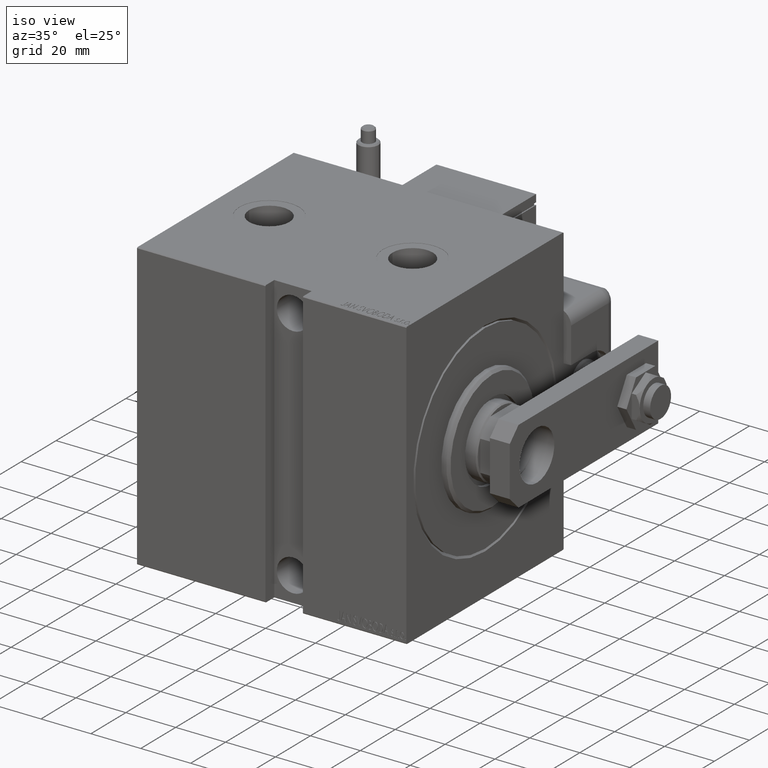
[diagram: clean part render]
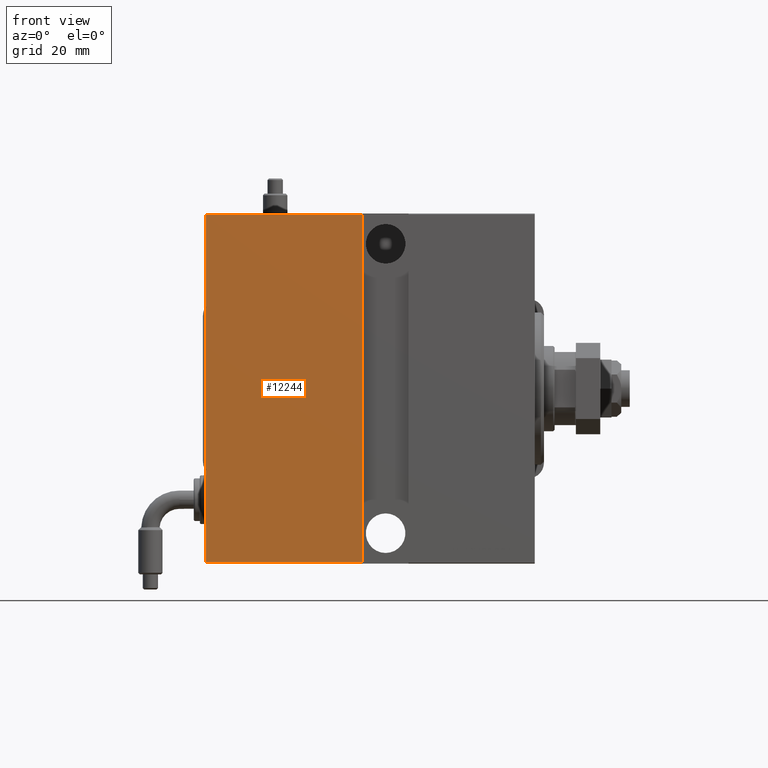
[diagram: tour spotlight — one face highlighted and labeled with its STEP entity id]
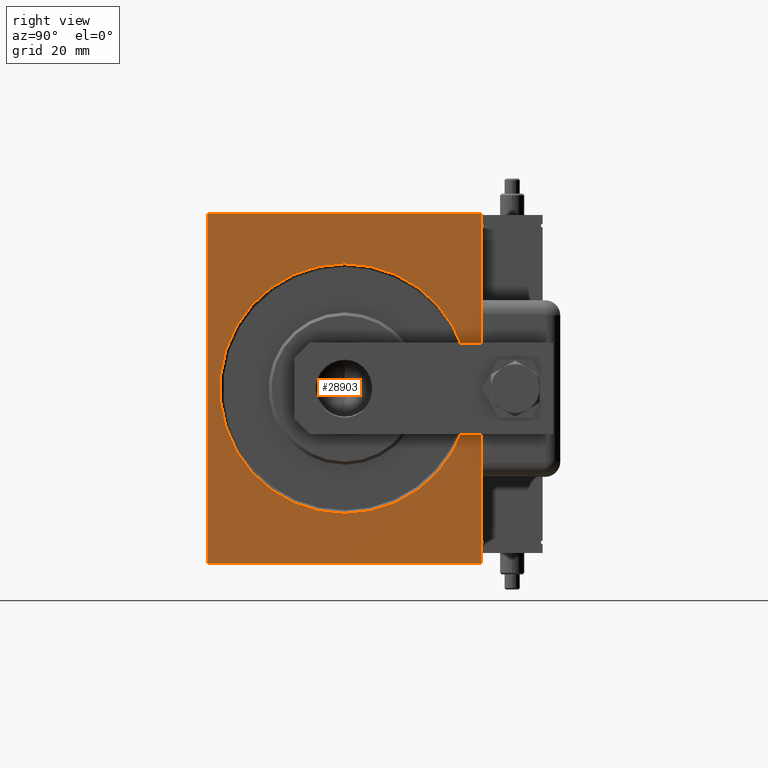
[diagram: tour spotlight — one face highlighted and labeled with its STEP entity id]
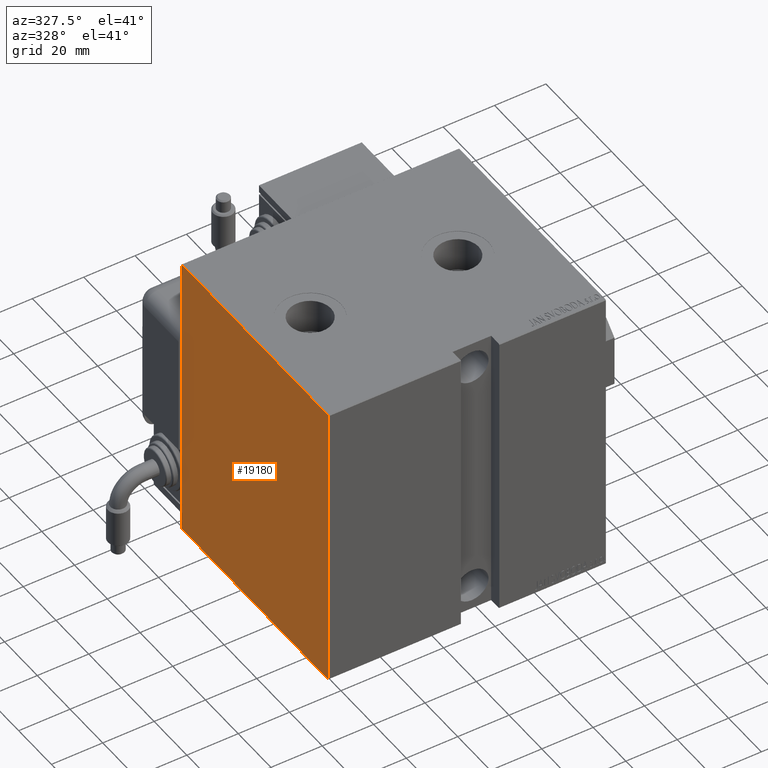
[diagram: tour spotlight — one face highlighted and labeled with its STEP entity id]
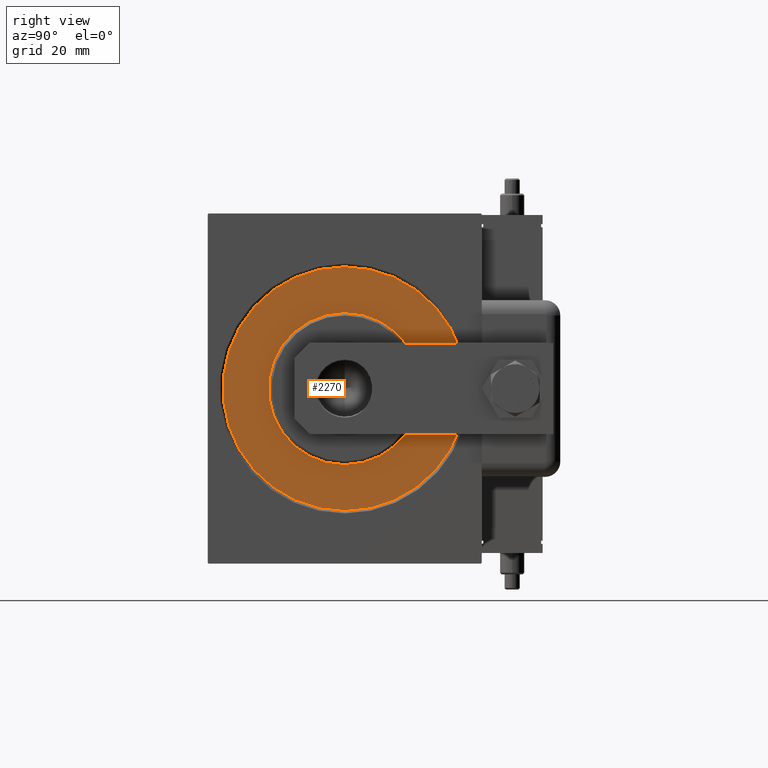
[diagram: tour spotlight — one face highlighted and labeled with its STEP entity id]
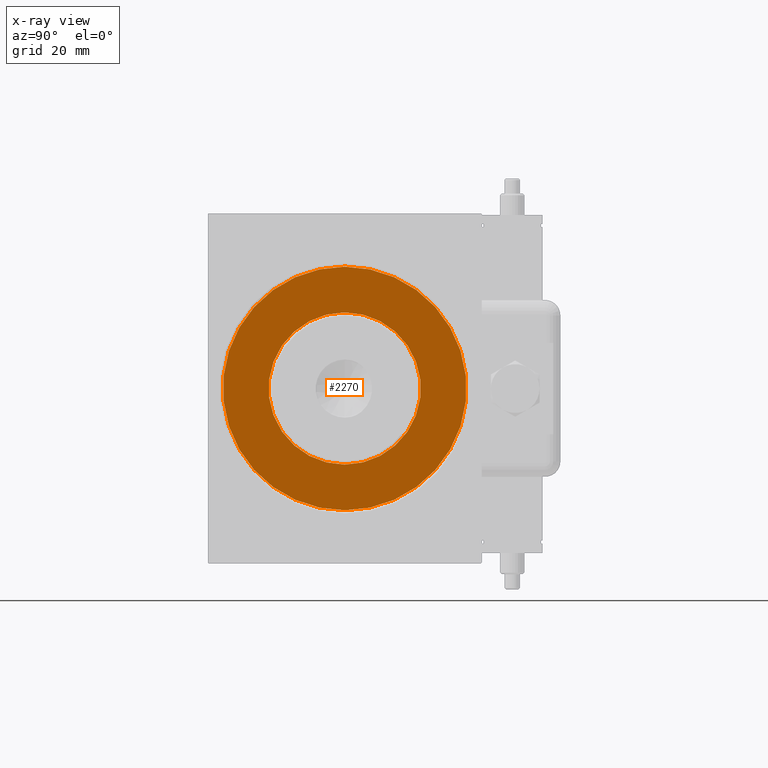
[diagram: x-ray of the same camera — body ghosted, this tour face saturated]
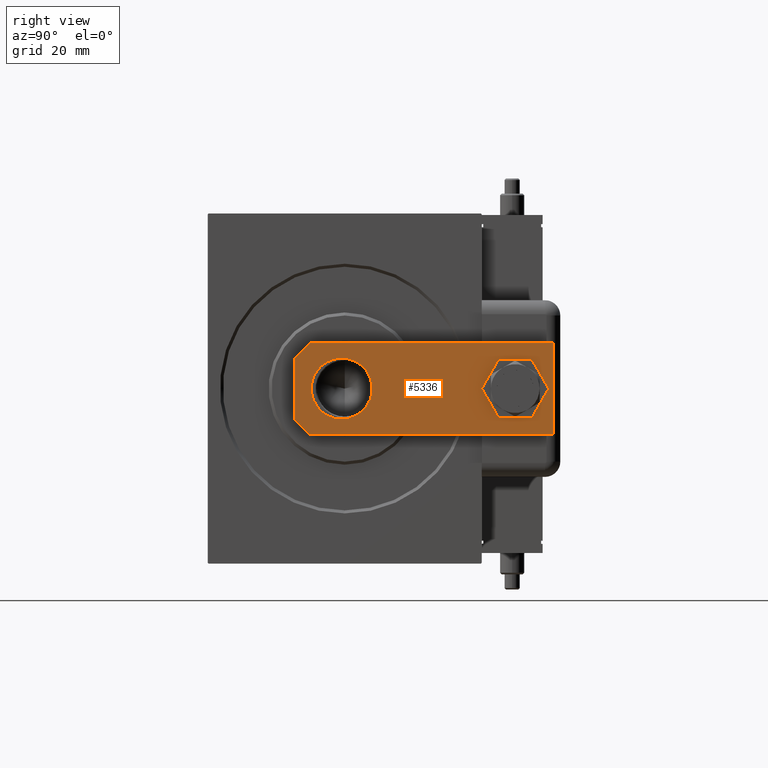
[diagram: tour spotlight — one face highlighted and labeled with its STEP entity id]
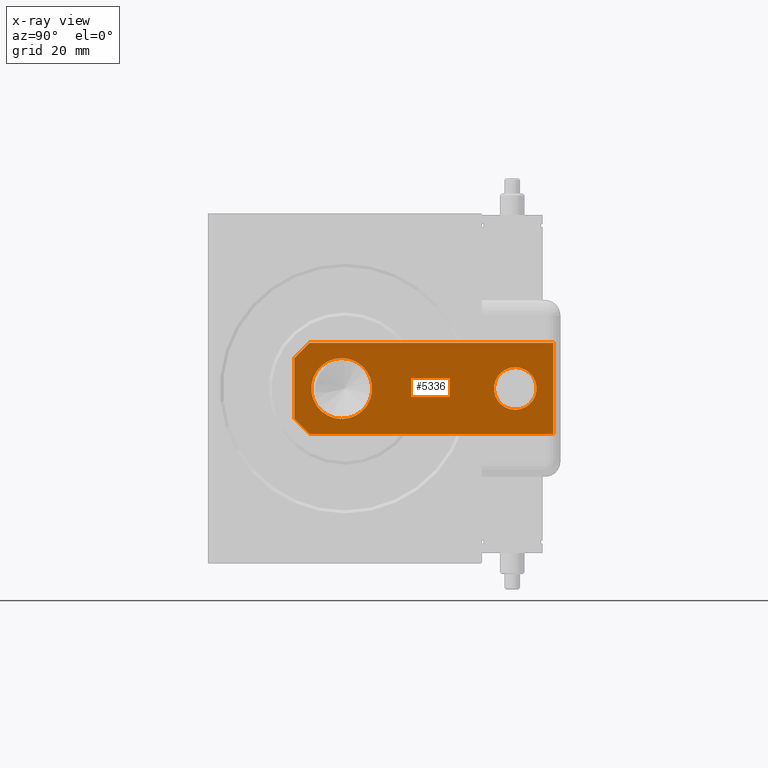
[diagram: x-ray of the same camera — body ghosted, this tour face saturated]
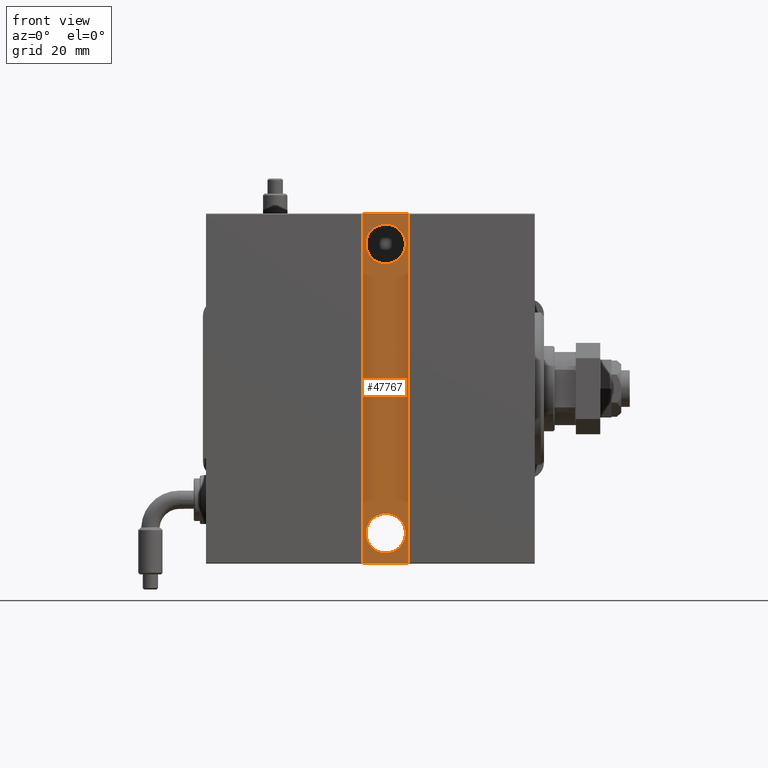
[diagram: tour spotlight — one face highlighted and labeled with its STEP entity id]
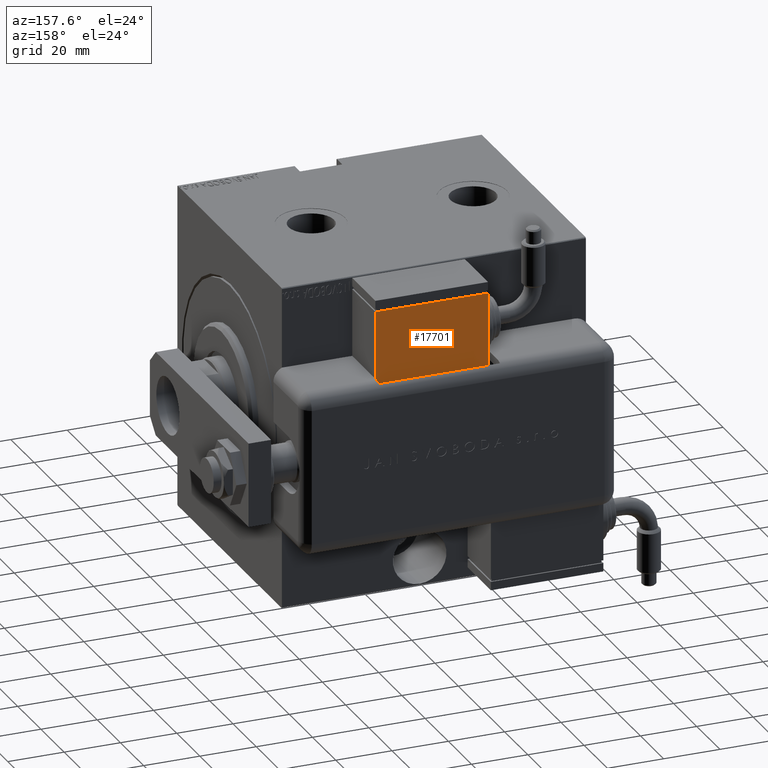
[diagram: tour spotlight — one face highlighted and labeled with its STEP entity id]
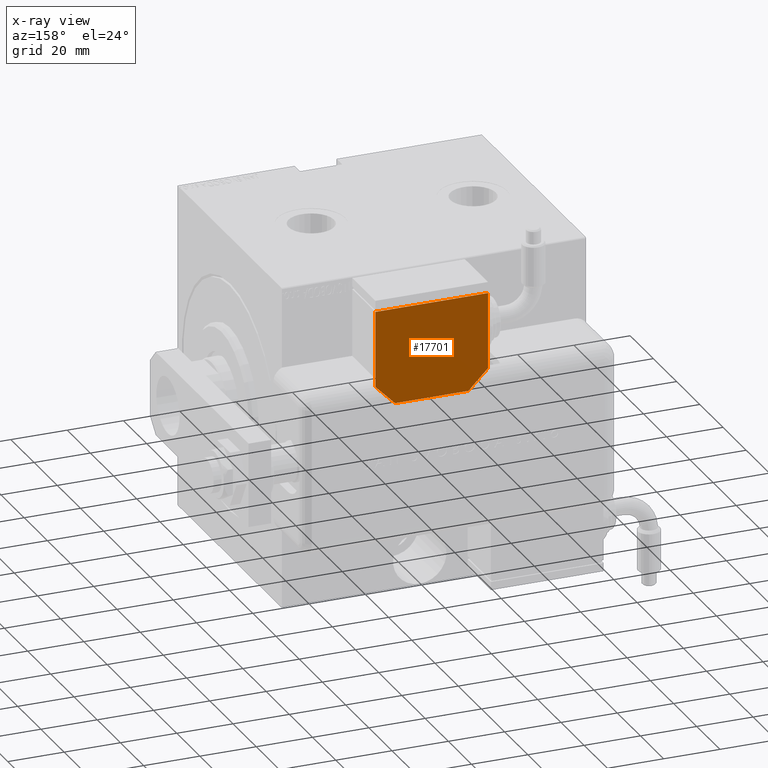
[diagram: x-ray of the same camera — body ghosted, this tour face saturated]
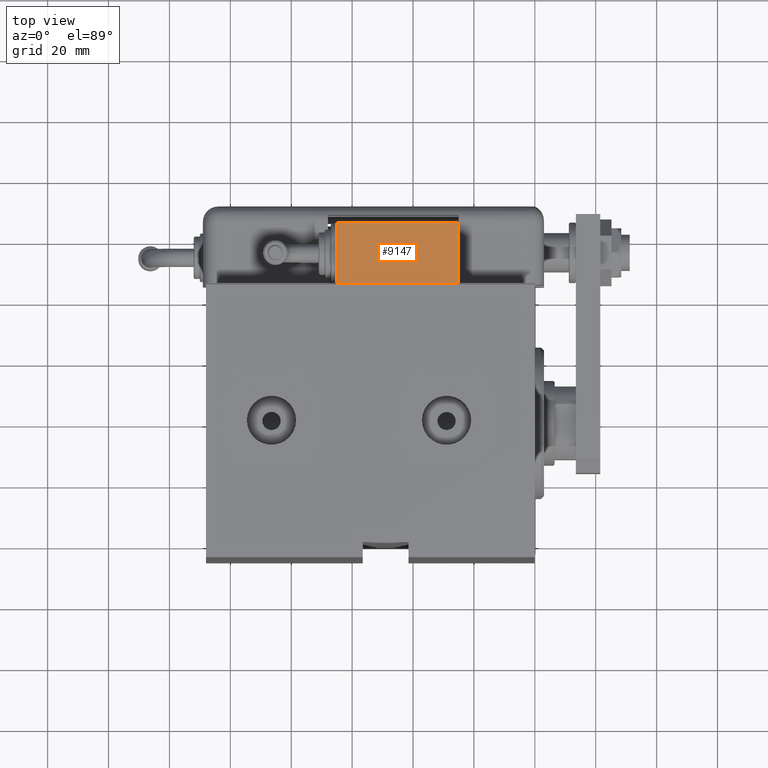
[diagram: tour spotlight — one face highlighted and labeled with its STEP entity id]
A machine part: a face-by-face anatomy tour. The part has 1258 B-rep faces; the first image is the clean iso view, then the 8 largest visible faces are spotlighted one at a time (largest first), each with its STEP entity span.

Face 1 — front view, entity #12244. In plain terms, the highlighted planar face has unit normal (0, 1, 0).
Definition (entity closure, byte-faithful):
#1123 = DIRECTION ( 'NONE',  ( -1.000000000000000000, 0.000000000000000000, 0.000000000000000000 ) ) ;
#2684 = LINE ( 'NONE', #57820, #11516 ) ;
#5771 = DIRECTION ( 'NONE',  ( -1.206764157201257291E-16, -0.000000000000000000, -1.000000000000000000 ) ) ;
#7352 = ORIENTED_EDGE ( 'NONE', *, *, #20819, .F. ) ;
#10140 = VECTOR ( 'NONE', #23026, 1000.000000000000000 ) ;
#11516 = VECTOR ( 'NONE', #16972, 1000.000000000000000 ) ;
#12244 = ADVANCED_FACE ( 'NONE', ( #28007 ), #36844, .F. ) ;
#12635 = EDGE_CURVE ( 'NONE', #31924, #35230, #58048, .T. ) ;
#13262 = ORIENTED_EDGE ( 'NONE', *, *, #15839, .T. ) ;
#14593 = CARTESIAN_POINT ( 'NONE',  ( 108.0000000000000000, 45.00000000000001421, -57.50000000000000711 ) ) ;
#15839 = EDGE_CURVE ( 'NONE', #50045, #47575, #47098, .T. ) ;
#16972 = DIRECTION ( 'NONE',  ( 0.000000000000000000, 0.000000000000000000, 1.000000000000000000 ) ) ;
#18588 = ORIENTED_EDGE ( 'NONE', *, *, #58117, .F. ) ;
#19756 = LINE ( 'NONE', #38359, #50044 ) ;
#20120 = CARTESIAN_POINT ( 'NONE',  ( 56.50000000000000000, 45.00000000000001421, -57.20000000000004547 ) ) ;
#20819 = EDGE_CURVE ( 'NONE', #50045, #35230, #19756, .T. ) ;
#22117 = CARTESIAN_POINT ( 'NONE',  ( 108.0000000000000000, 45.00000000000001421, 57.19999999999998863 ) ) ;
#23026 = DIRECTION ( 'NONE',  ( 1.000000000000000000, 0.000000000000000000, 0.000000000000000000 ) ) ;
#23426 = DIRECTION ( 'NONE',  ( 0.000000000000000000, -1.000000000000000000, 0.000000000000000000 ) ) ;
#28007 = FACE_OUTER_BOUND ( 'NONE', #39210, .T. ) ;
#30440 = AXIS2_PLACEMENT_3D ( 'NONE', #14593, #23426, #50856 ) ;
#31924 = VERTEX_POINT ( 'NONE', #40000 ) ;
#35230 = VERTEX_POINT ( 'NONE', #20120 ) ;
#36844 = PLANE ( 'NONE',  #30440 ) ;
#37336 = CARTESIAN_POINT ( 'NONE',  ( 108.0000000000000000, 45.00000000000001421, 57.20000000000001705 ) ) ;
#38284 = CARTESIAN_POINT ( 'NONE',  ( 108.0000000000000000, 45.00000000000001421, -57.20000000000004547 ) ) ;
#38359 = CARTESIAN_POINT ( 'NONE',  ( 56.50000000000000000, 45.00000000000001421, -57.50000000000000711 ) ) ;
#39210 = EDGE_LOOP ( 'NONE', ( #18588, #60088, #7352, #13262 ) ) ;
#40000 = CARTESIAN_POINT ( 'NONE',  ( 108.0000000000000000, 45.00000000000001421, -57.20000000000004547 ) ) ;
#45973 = VECTOR ( 'NONE', #1123, 1000.000000000000000 ) ;
#47098 = LINE ( 'NONE', #37336, #10140 ) ;
#47575 = VERTEX_POINT ( 'NONE', #22117 ) ;
#50044 = VECTOR ( 'NONE', #5771, 1000.000000000000000 ) ;
#50045 = VERTEX_POINT ( 'NONE', #51551 ) ;
#50856 = DIRECTION ( 'NONE',  ( 0.000000000000000000, -0.000000000000000000, -1.000000000000000000 ) ) ;
#51551 = CARTESIAN_POINT ( 'NONE',  ( 56.50000000000001421, 45.00000000000001421, 57.20000000000001705 ) ) ;
#57820 = CARTESIAN_POINT ( 'NONE',  ( 108.0000000000000000, 45.00000000000001421, -57.50000000000000711 ) ) ;
#58048 = LINE ( 'NONE', #38284, #45973 ) ;
#58117 = EDGE_CURVE ( 'NONE', #31924, #47575, #2684, .T. ) ;
#60088 = ORIENTED_EDGE ( 'NONE', *, *, #12635, .T. ) ;

Face 2 — right view, entity #28903. In plain terms, the highlighted planar face has unit normal (-1, 0, 0).
Definition (entity closure, byte-faithful):
#14 = ORIENTED_EDGE ( 'NONE', *, *, #37092, .F. ) ;
#928 = VERTEX_POINT ( 'NONE', #54497 ) ;
#1027 = CARTESIAN_POINT ( 'NONE',  ( 0.000000000000000000, 0.000000000000000000, 0.000000000000000000 ) ) ;
#1141 = DIRECTION ( 'NONE',  ( 0.000000000000000000, 0.000000000000000000, -1.000000000000000000 ) ) ;
#2490 = PLANE ( 'NONE',  #47502 ) ;
#2862 = CIRCLE ( 'NONE', #5786, 41.00000000000000711 ) ;
#3182 = CARTESIAN_POINT ( 'NONE',  ( 0.000000000000000000, -44.70000000000003126, -57.50000000000002132 ) ) ;
#3380 = VERTEX_POINT ( 'NONE', #57894 ) ;
#4393 = DIRECTION ( 'NONE',  ( 0.000000000000000000, 0.000000000000000000, -1.000000000000000000 ) ) ;
#4530 = CARTESIAN_POINT ( 'NONE',  ( 0.000000000000000000, -45.00000000000000000, -57.20000000000003126 ) ) ;
#4778 = VERTEX_POINT ( 'NONE', #55482 ) ;
#5351 = ORIENTED_EDGE ( 'NONE', *, *, #13051, .F. ) ;
#5786 = AXIS2_PLACEMENT_3D ( 'NONE', #29158, #34617, #1141 ) ;
#6401 = CARTESIAN_POINT ( 'NONE',  ( 0.000000000000000000, -45.00000000000000000, -57.50000000000002132 ) ) ;
#6416 = VECTOR ( 'NONE', #31259, 1000.000000000000114 ) ;
#6614 = ORIENTED_EDGE ( 'NONE', *, *, #10264, .T. ) ;
#7417 = VERTEX_POINT ( 'NONE', #27358 ) ;
#8289 = LINE ( 'NONE', #50038, #35312 ) ;
#9216 = LINE ( 'NONE', #23226, #56381 ) ;
#10264 = EDGE_CURVE ( 'NONE', #28567, #56037, #17766, .T. ) ;
#13051 = EDGE_CURVE ( 'NONE', #52469, #56037, #8289, .T. ) ;
#13267 = ORIENTED_EDGE ( 'NONE', *, *, #38831, .T. ) ;
#13630 = VECTOR ( 'NONE', #28131, 1000.000000000000000 ) ;
#14257 = EDGE_CURVE ( 'NONE', #28567, #4778, #57560, .T. ) ;
#15107 = ORIENTED_EDGE ( 'NONE', *, *, #26835, .T. ) ;
#15782 = VECTOR ( 'NONE', #60106, 1000.000000000000114 ) ;
#15997 = CIRCLE ( 'NONE', #50049, 41.00000000000000711 ) ;
#17022 = EDGE_CURVE ( 'NONE', #32740, #3380, #15997, .T. ) ;
#17766 = LINE ( 'NONE', #3182, #15782 ) ;
#21057 = CARTESIAN_POINT ( 'NONE',  ( 0.000000000000000000, 0.000000000000000000, 0.000000000000000000 ) ) ;
#21563 = EDGE_LOOP ( 'NONE', ( #22361, #53568 ) ) ;
#22173 = EDGE_CURVE ( 'NONE', #50612, #7417, #44658, .T. ) ;
#22361 = ORIENTED_EDGE ( 'NONE', *, *, #17022, .T. ) ;
#23226 = CARTESIAN_POINT ( 'NONE',  ( 0.000000000000000000, 45.00000000000001421, 57.50000000000001421 ) ) ;
#24357 = VERTEX_POINT ( 'NONE', #55932 ) ;
#25106 = CARTESIAN_POINT ( 'NONE',  ( 0.000000000000000000, -44.70000000000003126, -57.50000000000002132 ) ) ;
#25277 = DIRECTION ( 'NONE',  ( 0.000000000000000000, 1.000000000000000000, 1.541976423090495140E-16 ) ) ;
#25469 = CARTESIAN_POINT ( 'NONE',  ( 0.000000000000000000, 45.00000000000001421, -57.50000000000000711 ) ) ;
#26835 = EDGE_CURVE ( 'NONE', #52469, #24357, #34001, .T. ) ;
#27358 = CARTESIAN_POINT ( 'NONE',  ( 0.000000000000000000, 45.00000000000001421, 57.19999999999998863 ) ) ;
#28131 = DIRECTION ( 'NONE',  ( -0.000000000000000000, 0.7071067811865393571, -0.7071067811865556774 ) ) ;
#28567 = VERTEX_POINT ( 'NONE', #25106 ) ;
#28903 = ADVANCED_FACE ( 'NONE', ( #39354, #33879 ), #2490, .F. ) ;
#29112 = ORIENTED_EDGE ( 'NONE', *, *, #45477, .T. ) ;
#29158 = CARTESIAN_POINT ( 'NONE',  ( 0.000000000000000000, 0.000000000000000000, 0.000000000000000000 ) ) ;
#29426 = DIRECTION ( 'NONE',  ( -0.000000000000000000, 0.7071067811865474617, 0.7071067811865474617 ) ) ;
#30406 = CARTESIAN_POINT ( 'NONE',  ( 0.000000000000000000, 45.00000000000001421, -57.20000000000004547 ) ) ;
#31259 = DIRECTION ( 'NONE',  ( -0.000000000000000000, -0.7071067811865474617, -0.7071067811865474617 ) ) ;
#32687 = LINE ( 'NONE', #60094, #13630 ) ;
#32740 = VERTEX_POINT ( 'NONE', #54299 ) ;
#33879 = FACE_OUTER_BOUND ( 'NONE', #57312, .T. ) ;
#34001 = LINE ( 'NONE', #52579, #36689 ) ;
#34477 = DIRECTION ( 'NONE',  ( 1.000000000000000000, 0.000000000000000000, -0.000000000000000000 ) ) ;
#34617 = DIRECTION ( 'NONE',  ( 1.000000000000000000, 0.000000000000000000, -0.000000000000000000 ) ) ;
#35312 = VECTOR ( 'NONE', #40596, 1000.000000000000000 ) ;
#36507 = EDGE_CURVE ( 'NONE', #3380, #32740, #2862, .T. ) ;
#36689 = VECTOR ( 'NONE', #29426, 1000.000000000000114 ) ;
#37092 = EDGE_CURVE ( 'NONE', #928, #24357, #9216, .T. ) ;
#38831 = EDGE_CURVE ( 'NONE', #928, #7417, #32687, .T. ) ;
#39354 = FACE_BOUND ( 'NONE', #21563, .T. ) ;
#40410 = CARTESIAN_POINT ( 'NONE',  ( 0.000000000000000000, 45.00000000000001421, -57.20000000000004547 ) ) ;
#40596 = DIRECTION ( 'NONE',  ( 0.000000000000000000, 0.000000000000000000, -1.000000000000000000 ) ) ;
#44658 = LINE ( 'NONE', #25469, #47243 ) ;
#45477 = EDGE_CURVE ( 'NONE', #50612, #4778, #54412, .T. ) ;
#46074 = CARTESIAN_POINT ( 'NONE',  ( 0.000000000000000000, -45.00000000000000000, 57.20000000000000284 ) ) ;
#47243 = VECTOR ( 'NONE', #57464, 1000.000000000000000 ) ;
#47502 = AXIS2_PLACEMENT_3D ( 'NONE', #21057, #34477, #57622 ) ;
#48937 = ORIENTED_EDGE ( 'NONE', *, *, #22173, .F. ) ;
#50038 = CARTESIAN_POINT ( 'NONE',  ( 0.000000000000000000, -45.00000000000000000, 57.49999999999999289 ) ) ;
#50049 = AXIS2_PLACEMENT_3D ( 'NONE', #1027, #51290, #4393 ) ;
#50612 = VERTEX_POINT ( 'NONE', #30406 ) ;
#51290 = DIRECTION ( 'NONE',  ( 1.000000000000000000, 0.000000000000000000, -0.000000000000000000 ) ) ;
#51565 = DIRECTION ( 'NONE',  ( 0.000000000000000000, -1.000000000000000000, -2.312964634635742957E-16 ) ) ;
#51926 = VECTOR ( 'NONE', #25277, 1000.000000000000000 ) ;
#52469 = VERTEX_POINT ( 'NONE', #46074 ) ;
#52579 = CARTESIAN_POINT ( 'NONE',  ( 0.000000000000000000, -45.00000000000000000, 57.20000000000000284 ) ) ;
#52998 = ORIENTED_EDGE ( 'NONE', *, *, #14257, .F. ) ;
#53568 = ORIENTED_EDGE ( 'NONE', *, *, #36507, .T. ) ;
#54299 = CARTESIAN_POINT ( 'NONE',  ( 0.000000000000000000, 0.000000000000000000, 41.00000000000000711 ) ) ;
#54412 = LINE ( 'NONE', #40410, #6416 ) ;
#54497 = CARTESIAN_POINT ( 'NONE',  ( 0.000000000000000000, 44.70000000000001705, 57.50000000000001421 ) ) ;
#55482 = CARTESIAN_POINT ( 'NONE',  ( 0.000000000000000000, 44.70000000000001705, -57.50000000000000711 ) ) ;
#55932 = CARTESIAN_POINT ( 'NONE',  ( 0.000000000000000000, -44.69999999999997442, 57.49999999999999289 ) ) ;
#56037 = VERTEX_POINT ( 'NONE', #4530 ) ;
#56381 = VECTOR ( 'NONE', #51565, 1000.000000000000000 ) ;
#57312 = EDGE_LOOP ( 'NONE', ( #14, #13267, #48937, #29112, #52998, #6614, #5351, #15107 ) ) ;
#57464 = DIRECTION ( 'NONE',  ( 0.000000000000000000, 0.000000000000000000, 1.000000000000000000 ) ) ;
#57560 = LINE ( 'NONE', #6401, #51926 ) ;
#57622 = DIRECTION ( 'NONE',  ( -0.000000000000000000, 0.000000000000000000, -1.000000000000000000 ) ) ;
#57894 = CARTESIAN_POINT ( 'NONE',  ( 0.000000000000000000, 5.021051876504148963E-15, -41.00000000000000711 ) ) ;
#60094 = CARTESIAN_POINT ( 'NONE',  ( 0.000000000000000000, 44.70000000000001705, 57.50000000000001421 ) ) ;
#60106 = DIRECTION ( 'NONE',  ( 0.000000000000000000, -0.7071067811865474617, 0.7071067811865474617 ) ) ;

Face 3 — auxiliary view, entity #19180. In plain terms, the highlighted planar face has unit normal (-1, 0, 0).
Definition (entity closure, byte-faithful):
#990 = EDGE_CURVE ( 'NONE', #47575, #10085, #33458, .T. ) ;
#1042 = CARTESIAN_POINT ( 'NONE',  ( 108.0000000000000000, -51.10000000000002984, -51.10000000000002984 ) ) ;
#2101 = DIRECTION ( 'NONE',  ( 0.000000000000000000, -1.000000000000000000, -2.312964634635742957E-16 ) ) ;
#2229 = VECTOR ( 'NONE', #31287, 1000.000000000000114 ) ;
#2485 = AXIS2_PLACEMENT_3D ( 'NONE', #33692, #10839, #47729 ) ;
#2679 = CARTESIAN_POINT ( 'NONE',  ( 108.0000000000000000, -51.10000000000000853, 51.10000000000000853 ) ) ;
#2684 = LINE ( 'NONE', #57820, #11516 ) ;
#3708 = VECTOR ( 'NONE', #34580, 1000.000000000000114 ) ;
#7232 = VECTOR ( 'NONE', #15474, 1000.000000000000000 ) ;
#7346 = ORIENTED_EDGE ( 'NONE', *, *, #57313, .T. ) ;
#9251 = CARTESIAN_POINT ( 'NONE',  ( 108.0000000000000000, -44.70000000000003126, -57.50000000000002132 ) ) ;
#10085 = VERTEX_POINT ( 'NONE', #15695 ) ;
#10839 = DIRECTION ( 'NONE',  ( 1.000000000000000000, 0.000000000000000000, -0.000000000000000000 ) ) ;
#11516 = VECTOR ( 'NONE', #16972, 1000.000000000000000 ) ;
#12442 = EDGE_CURVE ( 'NONE', #29453, #14534, #41037, .T. ) ;
#14181 = ORIENTED_EDGE ( 'NONE', *, *, #35846, .T. ) ;
#14477 = CARTESIAN_POINT ( 'NONE',  ( 108.0000000000000000, -44.69999999999997442, 57.49999999999999289 ) ) ;
#14534 = VERTEX_POINT ( 'NONE', #52327 ) ;
#14700 = ORIENTED_EDGE ( 'NONE', *, *, #58117, .T. ) ;
#15220 = CARTESIAN_POINT ( 'NONE',  ( 108.0000000000000000, 44.70000000000001705, -57.50000000000000711 ) ) ;
#15474 = DIRECTION ( 'NONE',  ( -0.000000000000000000, -0.7071067811865393571, 0.7071067811865556774 ) ) ;
#15695 = CARTESIAN_POINT ( 'NONE',  ( 108.0000000000000000, 44.70000000000001705, 57.50000000000001421 ) ) ;
#16972 = DIRECTION ( 'NONE',  ( 0.000000000000000000, 0.000000000000000000, 1.000000000000000000 ) ) ;
#17296 = ORIENTED_EDGE ( 'NONE', *, *, #12442, .T. ) ;
#18964 = ORIENTED_EDGE ( 'NONE', *, *, #45058, .T. ) ;
#19180 = ADVANCED_FACE ( 'NONE', ( #29136 ), #42555, .T. ) ;
#19656 = ORIENTED_EDGE ( 'NONE', *, *, #58787, .T. ) ;
#19766 = LINE ( 'NONE', #29520, #57280 ) ;
#21830 = DIRECTION ( 'NONE',  ( 0.000000000000000000, 1.000000000000000000, 1.541976423090495140E-16 ) ) ;
#22117 = CARTESIAN_POINT ( 'NONE',  ( 108.0000000000000000, 45.00000000000001421, 57.19999999999998863 ) ) ;
#24325 = CARTESIAN_POINT ( 'NONE',  ( 108.0000000000000000, 51.10000000000053433, 51.09999999999935483 ) ) ;
#25734 = CARTESIAN_POINT ( 'NONE',  ( 108.0000000000000000, 51.10000000000002984, -51.10000000000002984 ) ) ;
#26500 = EDGE_CURVE ( 'NONE', #46685, #42683, #36455, .T. ) ;
#26909 = VECTOR ( 'NONE', #21830, 1000.000000000000000 ) ;
#29136 = FACE_OUTER_BOUND ( 'NONE', #51425, .T. ) ;
#29453 = VERTEX_POINT ( 'NONE', #14477 ) ;
#29520 = CARTESIAN_POINT ( 'NONE',  ( 108.0000000000000000, 45.00000000000001421, 57.50000000000001421 ) ) ;
#30599 = CARTESIAN_POINT ( 'NONE',  ( 108.0000000000000000, -45.00000000000000000, -57.20000000000003126 ) ) ;
#31287 = DIRECTION ( 'NONE',  ( -0.000000000000000000, -0.7071067811865474617, -0.7071067811865474617 ) ) ;
#31924 = VERTEX_POINT ( 'NONE', #40000 ) ;
#33458 = LINE ( 'NONE', #24325, #7232 ) ;
#33692 = CARTESIAN_POINT ( 'NONE',  ( 108.0000000000000000, 0.000000000000000000, 0.000000000000000000 ) ) ;
#33995 = VECTOR ( 'NONE', #52208, 1000.000000000000114 ) ;
#34580 = DIRECTION ( 'NONE',  ( -0.000000000000000000, 0.7071067811865474617, 0.7071067811865474617 ) ) ;
#34633 = VERTEX_POINT ( 'NONE', #30599 ) ;
#35846 = EDGE_CURVE ( 'NONE', #34633, #46685, #42791, .T. ) ;
#35891 = ORIENTED_EDGE ( 'NONE', *, *, #26500, .T. ) ;
#36455 = LINE ( 'NONE', #50178, #26909 ) ;
#36816 = LINE ( 'NONE', #50535, #45229 ) ;
#39208 = ORIENTED_EDGE ( 'NONE', *, *, #990, .T. ) ;
#40000 = CARTESIAN_POINT ( 'NONE',  ( 108.0000000000000000, 45.00000000000001421, -57.20000000000004547 ) ) ;
#41037 = LINE ( 'NONE', #2679, #2229 ) ;
#41693 = DIRECTION ( 'NONE',  ( 0.000000000000000000, 0.000000000000000000, -1.000000000000000000 ) ) ;
#42555 = PLANE ( 'NONE',  #2485 ) ;
#42683 = VERTEX_POINT ( 'NONE', #15220 ) ;
#42791 = LINE ( 'NONE', #1042, #33995 ) ;
#43139 = LINE ( 'NONE', #25734, #3708 ) ;
#45058 = EDGE_CURVE ( 'NONE', #14534, #34633, #36816, .T. ) ;
#45229 = VECTOR ( 'NONE', #41693, 1000.000000000000000 ) ;
#46685 = VERTEX_POINT ( 'NONE', #9251 ) ;
#47575 = VERTEX_POINT ( 'NONE', #22117 ) ;
#47729 = DIRECTION ( 'NONE',  ( -0.000000000000000000, 0.000000000000000000, -1.000000000000000000 ) ) ;
#50178 = CARTESIAN_POINT ( 'NONE',  ( 108.0000000000000000, -45.00000000000000000, -57.50000000000002132 ) ) ;
#50535 = CARTESIAN_POINT ( 'NONE',  ( 108.0000000000000000, -45.00000000000000000, 57.49999999999999289 ) ) ;
#51425 = EDGE_LOOP ( 'NONE', ( #35891, #7346, #14700, #39208, #19656, #17296, #18964, #14181 ) ) ;
#52208 = DIRECTION ( 'NONE',  ( -0.000000000000000000, 0.7071067811865474617, -0.7071067811865474617 ) ) ;
#52327 = CARTESIAN_POINT ( 'NONE',  ( 108.0000000000000000, -45.00000000000000000, 57.20000000000000284 ) ) ;
#57280 = VECTOR ( 'NONE', #2101, 1000.000000000000000 ) ;
#57313 = EDGE_CURVE ( 'NONE', #42683, #31924, #43139, .T. ) ;
#57820 = CARTESIAN_POINT ( 'NONE',  ( 108.0000000000000000, 45.00000000000001421, -57.50000000000000711 ) ) ;
#58117 = EDGE_CURVE ( 'NONE', #31924, #47575, #2684, .T. ) ;
#58787 = EDGE_CURVE ( 'NONE', #10085, #29453, #19766, .T. ) ;

Face 4 — right view, entity #2270. An x-ray twin of the same camera follows (body ghosted, this face saturated) — the face is partly hidden behind the body. In plain terms, the highlighted planar face has unit normal (1, 0, 0).
Definition (entity closure, byte-faithful):
#20 = CARTESIAN_POINT ( 'NONE',  ( 0.000000000000000000, 0.000000000000000000, -40.00000000000000000 ) ) ;
#2270 = ADVANCED_FACE ( 'NONE', ( #7760, #26358 ), #8662, .T. ) ;
#3852 = CARTESIAN_POINT ( 'NONE',  ( 0.000000000000000000, 0.000000000000000000, 0.000000000000000000 ) ) ;
#5348 = DIRECTION ( 'NONE',  ( 0.000000000000000000, 0.000000000000000000, -1.000000000000000000 ) ) ;
#5458 = EDGE_CURVE ( 'NONE', #51960, #28787, #11101, .T. ) ;
#5566 = DIRECTION ( 'NONE',  ( 1.000000000000000000, 0.000000000000000000, 0.000000000000000000 ) ) ;
#7760 = FACE_OUTER_BOUND ( 'NONE', #21407, .T. ) ;
#8662 = PLANE ( 'NONE',  #42301 ) ;
#10615 = CIRCLE ( 'NONE', #12552, 25.00000000000000000 ) ;
#11101 = CIRCLE ( 'NONE', #45155, 25.00000000000000000 ) ;
#11738 = CARTESIAN_POINT ( 'NONE',  ( 0.000000000000000000, 0.000000000000000000, 0.000000000000000000 ) ) ;
#12552 = AXIS2_PLACEMENT_3D ( 'NONE', #3852, #49560, #27299 ) ;
#12727 = VERTEX_POINT ( 'NONE', #26361 ) ;
#17192 = CARTESIAN_POINT ( 'NONE',  ( 0.000000000000000000, 0.000000000000000000, 0.000000000000000000 ) ) ;
#21407 = EDGE_LOOP ( 'NONE', ( #24569, #51195 ) ) ;
#21763 = CIRCLE ( 'NONE', #25705, 40.00000000000000000 ) ;
#23526 = CARTESIAN_POINT ( 'NONE',  ( 0.000000000000000000, 0.000000000000000000, 25.00000000000000000 ) ) ;
#24569 = ORIENTED_EDGE ( 'NONE', *, *, #42320, .T. ) ;
#25033 = DIRECTION ( 'NONE',  ( 0.000000000000000000, 0.000000000000000000, -1.000000000000000000 ) ) ;
#25705 = AXIS2_PLACEMENT_3D ( 'NONE', #51860, #5566, #25033 ) ;
#26358 = FACE_BOUND ( 'NONE', #56497, .T. ) ;
#26361 = CARTESIAN_POINT ( 'NONE',  ( 0.000000000000000000, 4.898587196589413026E-15, 40.00000000000000000 ) ) ;
#27299 = DIRECTION ( 'NONE',  ( 0.000000000000000000, 0.000000000000000000, -1.000000000000000000 ) ) ;
#28787 = VERTEX_POINT ( 'NONE', #23526 ) ;
#29438 = DIRECTION ( 'NONE',  ( 1.000000000000000000, -0.000000000000000000, 0.000000000000000000 ) ) ;
#31810 = DIRECTION ( 'NONE',  ( 0.000000000000000000, 0.000000000000000000, -1.000000000000000000 ) ) ;
#32149 = CARTESIAN_POINT ( 'NONE',  ( 0.000000000000000000, 0.000000000000000000, 0.000000000000000000 ) ) ;
#37686 = EDGE_CURVE ( 'NONE', #12727, #55575, #60277, .T. ) ;
#38467 = CARTESIAN_POINT ( 'NONE',  ( 0.000000000000000000, 3.061616997868383043E-15, -25.00000000000000000 ) ) ;
#38590 = DIRECTION ( 'NONE',  ( 0.000000000000000000, 0.000000000000000000, -1.000000000000000000 ) ) ;
#40816 = AXIS2_PLACEMENT_3D ( 'NONE', #32149, #42204, #5348 ) ;
#42204 = DIRECTION ( 'NONE',  ( 1.000000000000000000, 0.000000000000000000, 0.000000000000000000 ) ) ;
#42301 = AXIS2_PLACEMENT_3D ( 'NONE', #17192, #44939, #31810 ) ;
#42320 = EDGE_CURVE ( 'NONE', #55575, #12727, #21763, .T. ) ;
#43608 = ORIENTED_EDGE ( 'NONE', *, *, #5458, .F. ) ;
#44939 = DIRECTION ( 'NONE',  ( 1.000000000000000000, 0.000000000000000000, 0.000000000000000000 ) ) ;
#45155 = AXIS2_PLACEMENT_3D ( 'NONE', #11738, #29438, #38590 ) ;
#49560 = DIRECTION ( 'NONE',  ( 1.000000000000000000, -0.000000000000000000, 0.000000000000000000 ) ) ;
#51195 = ORIENTED_EDGE ( 'NONE', *, *, #37686, .T. ) ;
#51860 = CARTESIAN_POINT ( 'NONE',  ( 0.000000000000000000, 0.000000000000000000, 0.000000000000000000 ) ) ;
#51960 = VERTEX_POINT ( 'NONE', #38467 ) ;
#55468 = ORIENTED_EDGE ( 'NONE', *, *, #56243, .F. ) ;
#55575 = VERTEX_POINT ( 'NONE', #20 ) ;
#56243 = EDGE_CURVE ( 'NONE', #28787, #51960, #10615, .T. ) ;
#56497 = EDGE_LOOP ( 'NONE', ( #55468, #43608 ) ) ;
#60277 = CIRCLE ( 'NONE', #40816, 40.00000000000000000 ) ;

Face 5 — right view, entity #5336. An x-ray twin of the same camera follows (body ghosted, this face saturated) — the face is partly hidden behind the body. In plain terms, the highlighted planar face has unit normal (-1, 0, 0).
Definition (entity closure, byte-faithful):
#1978 = VERTEX_POINT ( 'NONE', #3579 ) ;
#3579 = CARTESIAN_POINT ( 'NONE',  ( 10.00000000000000355, 9.629649721936179265E-32, 0.000000000000000000 ) ) ;
#3984 = ORIENTED_EDGE ( 'NONE', *, *, #60245, .T. ) ;
#4065 = EDGE_CURVE ( 'NONE', #16076, #36803, #36781, .T. ) ;
#4135 = DIRECTION ( 'NONE',  ( 0.000000000000000000, 0.000000000000000000, 1.000000000000000000 ) ) ;
#4449 = CARTESIAN_POINT ( 'NONE',  ( 7.000000000000000000, 72.50000000000001421, 0.000000000000000000 ) ) ;
#5188 = LINE ( 'NONE', #56351, #12889 ) ;
#5336 = ADVANCED_FACE ( 'NONE', ( #55126, #42255, #8829 ), #27415, .F. ) ;
#5756 = CIRCLE ( 'NONE', #13516, 10.00000000000000711 ) ;
#6465 = DIRECTION ( 'NONE',  ( 1.000000000000000000, 0.000000000000000000, 0.000000000000000000 ) ) ;
#7055 = DIRECTION ( 'NONE',  ( 0.000000000000000000, 0.000000000000000000, 1.000000000000000000 ) ) ;
#7592 = AXIS2_PLACEMENT_3D ( 'NONE', #43927, #7055, #6465 ) ;
#8215 = DIRECTION ( 'NONE',  ( -0.000000000000000000, 0.000000000000000000, 1.000000000000000000 ) ) ;
#8829 = FACE_BOUND ( 'NONE', #27169, .T. ) ;
#9034 = AXIS2_PLACEMENT_3D ( 'NONE', #47535, #14622, #15222 ) ;
#9127 = CARTESIAN_POINT ( 'NONE',  ( -9.999999999999989342, 9.629649721936179265E-32, 0.000000000000000000 ) ) ;
#9553 = CIRCLE ( 'NONE', #7592, 7.000000000000000000 ) ;
#10007 = VERTEX_POINT ( 'NONE', #33075 ) ;
#10341 = DIRECTION ( 'NONE',  ( -0.7071067811865465735, 0.7071067811865485719, -0.000000000000000000 ) ) ;
#10541 = EDGE_CURVE ( 'NONE', #44481, #1978, #5188, .T. ) ;
#10591 = EDGE_CURVE ( 'NONE', #37761, #57472, #50879, .T. ) ;
#12111 = VECTOR ( 'NONE', #37577, 1000.000000000000000 ) ;
#12889 = VECTOR ( 'NONE', #56958, 1000.000000000000000 ) ;
#13516 = AXIS2_PLACEMENT_3D ( 'NONE', #50436, #4135, #14165 ) ;
#14165 = DIRECTION ( 'NONE',  ( 1.000000000000000000, 0.000000000000000000, 0.000000000000000000 ) ) ;
#14622 = DIRECTION ( 'NONE',  ( 0.000000000000000000, 0.000000000000000000, 1.000000000000000000 ) ) ;
#15222 = DIRECTION ( 'NONE',  ( 1.000000000000000000, 0.000000000000000000, 0.000000000000000000 ) ) ;
#15973 = AXIS2_PLACEMENT_3D ( 'NONE', #33102, #8215, #26816 ) ;
#16076 = VERTEX_POINT ( 'NONE', #20854 ) ;
#16087 = ORIENTED_EDGE ( 'NONE', *, *, #40790, .F. ) ;
#16551 = CARTESIAN_POINT ( 'NONE',  ( 15.00000000000000178, 85.00000000000000000, 0.000000000000000000 ) ) ;
#17095 = EDGE_CURVE ( 'NONE', #16076, #1978, #42463, .T. ) ;
#18111 = CARTESIAN_POINT ( 'NONE',  ( 15.00000000000000178, 85.00000000000000000, 0.000000000000000000 ) ) ;
#19402 = ORIENTED_EDGE ( 'NONE', *, *, #28972, .T. ) ;
#20407 = ORIENTED_EDGE ( 'NONE', *, *, #10541, .F. ) ;
#20543 = VECTOR ( 'NONE', #25348, 1000.000000000000000 ) ;
#20854 = CARTESIAN_POINT ( 'NONE',  ( 15.00000000000000888, 4.999999999999990230, 0.000000000000000000 ) ) ;
#22148 = DIRECTION ( 'NONE',  ( -8.163404592832032733E-17, 1.000000000000000000, 0.000000000000000000 ) ) ;
#24096 = ORIENTED_EDGE ( 'NONE', *, *, #38417, .T. ) ;
#24170 = CARTESIAN_POINT ( 'NONE',  ( -7.000000000000000000, 72.50000000000001421, 0.000000000000000000 ) ) ;
#25298 = ORIENTED_EDGE ( 'NONE', *, *, #10591, .T. ) ;
#25348 = DIRECTION ( 'NONE',  ( -1.020425574104004122E-16, -1.000000000000000000, 0.000000000000000000 ) ) ;
#26776 = CARTESIAN_POINT ( 'NONE',  ( 0.000000000000000000, 15.50000000000000711, 0.000000000000000000 ) ) ;
#26816 = DIRECTION ( 'NONE',  ( 1.000000000000000000, 0.000000000000000000, 0.000000000000000000 ) ) ;
#27169 = EDGE_LOOP ( 'NONE', ( #24096, #3984 ) ) ;
#27415 = PLANE ( 'NONE',  #15973 ) ;
#28972 = EDGE_CURVE ( 'NONE', #57472, #37761, #9553, .T. ) ;
#29553 = VECTOR ( 'NONE', #22148, 1000.000000000000000 ) ;
#30806 = CARTESIAN_POINT ( 'NONE',  ( -15.00000000000000000, 85.00000000000000000, 0.000000000000000000 ) ) ;
#31161 = LINE ( 'NONE', #16551, #37034 ) ;
#32403 = CARTESIAN_POINT ( 'NONE',  ( 10.00000000000000711, 15.50000000000000888, 0.000000000000000000 ) ) ;
#33075 = CARTESIAN_POINT ( 'NONE',  ( -15.00000000000000888, 5.000000000000031974, 0.000000000000000000 ) ) ;
#33102 = CARTESIAN_POINT ( 'NONE',  ( 0.000000000000000000, 0.000000000000000000, 0.000000000000000000 ) ) ;
#35728 = DIRECTION ( 'NONE',  ( -1.000000000000000000, 0.000000000000000000, 0.000000000000000000 ) ) ;
#36157 = EDGE_CURVE ( 'NONE', #44481, #10007, #51175, .T. ) ;
#36394 = ORIENTED_EDGE ( 'NONE', *, *, #39554, .F. ) ;
#36781 = LINE ( 'NONE', #45926, #29553 ) ;
#36803 = VERTEX_POINT ( 'NONE', #18111 ) ;
#36806 = ORIENTED_EDGE ( 'NONE', *, *, #4065, .F. ) ;
#37034 = VECTOR ( 'NONE', #35728, 1000.000000000000000 ) ;
#37577 = DIRECTION ( 'NONE',  ( -0.7071067811865485719, -0.7071067811865465735, -0.000000000000000000 ) ) ;
#37761 = VERTEX_POINT ( 'NONE', #4449 ) ;
#38417 = EDGE_CURVE ( 'NONE', #56717, #48812, #49649, .T. ) ;
#39554 = EDGE_CURVE ( 'NONE', #36803, #54756, #31161, .T. ) ;
#40071 = ORIENTED_EDGE ( 'NONE', *, *, #36157, .T. ) ;
#40781 = DIRECTION ( 'NONE',  ( 1.000000000000000000, 0.000000000000000000, 0.000000000000000000 ) ) ;
#40790 = EDGE_CURVE ( 'NONE', #54756, #10007, #49700, .T. ) ;
#40813 = ORIENTED_EDGE ( 'NONE', *, *, #17095, .T. ) ;
#42255 = FACE_BOUND ( 'NONE', #56158, .T. ) ;
#42463 = LINE ( 'NONE', #50982, #12111 ) ;
#43359 = CARTESIAN_POINT ( 'NONE',  ( -10.00000000000000711, 15.50000000000000711, 0.000000000000000000 ) ) ;
#43927 = CARTESIAN_POINT ( 'NONE',  ( 1.963948872468190046E-17, 72.50000000000001421, 0.000000000000000000 ) ) ;
#44481 = VERTEX_POINT ( 'NONE', #46712 ) ;
#45354 = DIRECTION ( 'NONE',  ( 0.000000000000000000, 0.000000000000000000, 1.000000000000000000 ) ) ;
#45926 = CARTESIAN_POINT ( 'NONE',  ( 15.00000000000000888, 9.629649721936179265E-32, 0.000000000000000000 ) ) ;
#46712 = CARTESIAN_POINT ( 'NONE',  ( -9.999999999999989342, 9.629649721936179265E-32, 0.000000000000000000 ) ) ;
#47535 = CARTESIAN_POINT ( 'NONE',  ( 1.963948872468190046E-17, 72.50000000000001421, 0.000000000000000000 ) ) ;
#47770 = CARTESIAN_POINT ( 'NONE',  ( -15.00000000000000000, 85.00000000000000000, 0.000000000000000000 ) ) ;
#48812 = VERTEX_POINT ( 'NONE', #32403 ) ;
#49649 = CIRCLE ( 'NONE', #59322, 10.00000000000000711 ) ;
#49700 = LINE ( 'NONE', #30806, #20543 ) ;
#49741 = EDGE_LOOP ( 'NONE', ( #20407, #40071, #16087, #36394, #36806, #40813 ) ) ;
#50436 = CARTESIAN_POINT ( 'NONE',  ( 0.000000000000000000, 15.50000000000000711, 0.000000000000000000 ) ) ;
#50879 = CIRCLE ( 'NONE', #9034, 7.000000000000000000 ) ;
#50982 = CARTESIAN_POINT ( 'NONE',  ( 15.00000000000000888, 4.999999999999990230, 0.000000000000000000 ) ) ;
#51175 = LINE ( 'NONE', #9127, #56339 ) ;
#54756 = VERTEX_POINT ( 'NONE', #47770 ) ;
#55126 = FACE_OUTER_BOUND ( 'NONE', #49741, .T. ) ;
#56158 = EDGE_LOOP ( 'NONE', ( #19402, #25298 ) ) ;
#56339 = VECTOR ( 'NONE', #10341, 1000.000000000000000 ) ;
#56351 = CARTESIAN_POINT ( 'NONE',  ( -15.00000000000000888, 9.629649721936179265E-32, 0.000000000000000000 ) ) ;
#56717 = VERTEX_POINT ( 'NONE', #43359 ) ;
#56958 = DIRECTION ( 'NONE',  ( 1.000000000000000000, 0.000000000000000000, 0.000000000000000000 ) ) ;
#57472 = VERTEX_POINT ( 'NONE', #24170 ) ;
#59322 = AXIS2_PLACEMENT_3D ( 'NONE', #26776, #45354, #40781 ) ;
#60245 = EDGE_CURVE ( 'NONE', #48812, #56717, #5756, .T. ) ;

Face 6 — front view, entity #47767. In plain terms, the highlighted planar face has unit normal (0, 1, 0).
Definition (entity closure, byte-faithful):
#415 = EDGE_CURVE ( 'NONE', #9919, #12411, #44169, .T. ) ;
#1846 = CARTESIAN_POINT ( 'NONE',  ( 41.50000000000000000, 40.00000000000001421, -57.50000000000000711 ) ) ;
#2216 = DIRECTION ( 'NONE',  ( 0.000000000000000000, 0.000000000000000000, -1.000000000000000000 ) ) ;
#2286 = CARTESIAN_POINT ( 'NONE',  ( 56.50000000000001421, 40.00000000000001421, 57.49999999999997868 ) ) ;
#2820 = FACE_BOUND ( 'NONE', #46585, .T. ) ;
#2868 = CIRCLE ( 'NONE', #23287, 6.499999999999999112 ) ;
#3583 = CARTESIAN_POINT ( 'NONE',  ( 49.00000000000002132, 40.00000000000001421, -54.00000000000000000 ) ) ;
#4363 = AXIS2_PLACEMENT_3D ( 'NONE', #25372, #43955, #2216 ) ;
#8875 = DIRECTION ( 'NONE',  ( 0.000000000000000000, 0.000000000000000000, -1.000000000000000000 ) ) ;
#9116 = CARTESIAN_POINT ( 'NONE',  ( 49.00000000000002132, 40.00000000000001421, -47.50000000000000000 ) ) ;
#9919 = VERTEX_POINT ( 'NONE', #51964 ) ;
#10594 = AXIS2_PLACEMENT_3D ( 'NONE', #50018, #21677, #26869 ) ;
#12411 = VERTEX_POINT ( 'NONE', #3583 ) ;
#13084 = DIRECTION ( 'NONE',  ( 0.000000000000000000, -1.000000000000000000, 0.000000000000000000 ) ) ;
#15305 = DIRECTION ( 'NONE',  ( 1.000000000000000000, -0.000000000000000000, -0.000000000000000000 ) ) ;
#15793 = ORIENTED_EDGE ( 'NONE', *, *, #32363, .T. ) ;
#16349 = EDGE_CURVE ( 'NONE', #55658, #30491, #59770, .T. ) ;
#16524 = LINE ( 'NONE', #53682, #51199 ) ;
#16880 = DIRECTION ( 'NONE',  ( 1.206764157201257291E-16, 0.000000000000000000, 1.000000000000000000 ) ) ;
#17120 = CARTESIAN_POINT ( 'NONE',  ( 41.50000000000001421, 40.00000000000001421, 57.49999999999997868 ) ) ;
#20787 = FACE_OUTER_BOUND ( 'NONE', #22679, .T. ) ;
#21677 = DIRECTION ( 'NONE',  ( 0.000000000000000000, -1.000000000000000000, 0.000000000000000000 ) ) ;
#22679 = EDGE_LOOP ( 'NONE', ( #46524, #46655, #40695, #37801 ) ) ;
#23287 = AXIS2_PLACEMENT_3D ( 'NONE', #9116, #13084, #51166 ) ;
#24581 = VERTEX_POINT ( 'NONE', #33606 ) ;
#24747 = CARTESIAN_POINT ( 'NONE',  ( 56.50000000000001421, 40.00000000000001421, 57.49999999999997868 ) ) ;
#25107 = VERTEX_POINT ( 'NONE', #1846 ) ;
#25154 = EDGE_CURVE ( 'NONE', #24581, #25107, #54788, .T. ) ;
#25372 = CARTESIAN_POINT ( 'NONE',  ( 49.00000000000002132, 40.00000000000001421, 47.50000000000000000 ) ) ;
#25725 = ORIENTED_EDGE ( 'NONE', *, *, #415, .T. ) ;
#25941 = EDGE_CURVE ( 'NONE', #25107, #27109, #54049, .T. ) ;
#26869 = DIRECTION ( 'NONE',  ( 0.000000000000000000, 0.000000000000000000, -1.000000000000000000 ) ) ;
#27109 = VERTEX_POINT ( 'NONE', #17120 ) ;
#27827 = VECTOR ( 'NONE', #49646, 1000.000000000000000 ) ;
#30491 = VERTEX_POINT ( 'NONE', #37721 ) ;
#31721 = DIRECTION ( 'NONE',  ( 0.000000000000000000, -1.000000000000000000, 0.000000000000000000 ) ) ;
#32363 = EDGE_CURVE ( 'NONE', #12411, #9919, #2868, .T. ) ;
#32971 = ORIENTED_EDGE ( 'NONE', *, *, #35145, .T. ) ;
#33606 = CARTESIAN_POINT ( 'NONE',  ( 56.50000000000001421, 40.00000000000002132, -57.50000000000000711 ) ) ;
#35005 = ORIENTED_EDGE ( 'NONE', *, *, #16349, .T. ) ;
#35145 = EDGE_CURVE ( 'NONE', #30491, #55658, #50472, .T. ) ;
#36830 = CARTESIAN_POINT ( 'NONE',  ( 56.50000000000000000, 40.00000000000001421, -57.50000000000000711 ) ) ;
#37312 = EDGE_LOOP ( 'NONE', ( #25725, #15793 ) ) ;
#37609 = VECTOR ( 'NONE', #16880, 1000.000000000000000 ) ;
#37721 = CARTESIAN_POINT ( 'NONE',  ( 49.00000000000002132, 40.00000000000001421, 41.00000000000000000 ) ) ;
#37801 = ORIENTED_EDGE ( 'NONE', *, *, #25154, .T. ) ;
#37994 = EDGE_CURVE ( 'NONE', #27109, #57328, #57043, .T. ) ;
#38497 = DIRECTION ( 'NONE',  ( 0.000000000000000000, -0.000000000000000000, -1.000000000000000000 ) ) ;
#39091 = PLANE ( 'NONE',  #39500 ) ;
#39500 = AXIS2_PLACEMENT_3D ( 'NONE', #57957, #44262, #38497 ) ;
#40695 = ORIENTED_EDGE ( 'NONE', *, *, #47754, .T. ) ;
#43369 = FACE_BOUND ( 'NONE', #37312, .T. ) ;
#43567 = CARTESIAN_POINT ( 'NONE',  ( 49.00000000000002132, 40.00000000000001421, 54.00000000000000000 ) ) ;
#43955 = DIRECTION ( 'NONE',  ( 0.000000000000000000, -1.000000000000000000, 0.000000000000000000 ) ) ;
#44169 = CIRCLE ( 'NONE', #49988, 6.499999999999999112 ) ;
#44262 = DIRECTION ( 'NONE',  ( 0.000000000000000000, -1.000000000000000000, 0.000000000000000000 ) ) ;
#44554 = DIRECTION ( 'NONE',  ( -1.206764157201257291E-16, -0.000000000000000000, -1.000000000000000000 ) ) ;
#46524 = ORIENTED_EDGE ( 'NONE', *, *, #25941, .T. ) ;
#46585 = EDGE_LOOP ( 'NONE', ( #35005, #32971 ) ) ;
#46655 = ORIENTED_EDGE ( 'NONE', *, *, #37994, .T. ) ;
#47754 = EDGE_CURVE ( 'NONE', #57328, #24581, #16524, .T. ) ;
#47767 = ADVANCED_FACE ( 'NONE', ( #2820, #43369, #20787 ), #39091, .F. ) ;
#48616 = VECTOR ( 'NONE', #15305, 1000.000000000000000 ) ;
#49646 = DIRECTION ( 'NONE',  ( -1.000000000000000000, 0.000000000000000000, 0.000000000000000000 ) ) ;
#49988 = AXIS2_PLACEMENT_3D ( 'NONE', #50622, #31721, #8875 ) ;
#50018 = CARTESIAN_POINT ( 'NONE',  ( 49.00000000000002132, 40.00000000000001421, 47.50000000000000000 ) ) ;
#50472 = CIRCLE ( 'NONE', #10594, 6.499999999999999112 ) ;
#50622 = CARTESIAN_POINT ( 'NONE',  ( 49.00000000000002132, 40.00000000000001421, -47.50000000000000000 ) ) ;
#51166 = DIRECTION ( 'NONE',  ( 0.000000000000000000, 0.000000000000000000, -1.000000000000000000 ) ) ;
#51199 = VECTOR ( 'NONE', #44554, 1000.000000000000000 ) ;
#51964 = CARTESIAN_POINT ( 'NONE',  ( 49.00000000000002132, 40.00000000000001421, -41.00000000000000000 ) ) ;
#53682 = CARTESIAN_POINT ( 'NONE',  ( 56.50000000000000000, 40.00000000000001421, -57.50000000000000711 ) ) ;
#54049 = LINE ( 'NONE', #54949, #37609 ) ;
#54788 = LINE ( 'NONE', #36830, #27827 ) ;
#54949 = CARTESIAN_POINT ( 'NONE',  ( 41.50000000000000000, 40.00000000000001421, -57.50000000000000711 ) ) ;
#55658 = VERTEX_POINT ( 'NONE', #43567 ) ;
#57043 = LINE ( 'NONE', #24747, #48616 ) ;
#57328 = VERTEX_POINT ( 'NONE', #2286 ) ;
#57957 = CARTESIAN_POINT ( 'NONE',  ( 0.000000000000000000, 40.00000000000001421, 0.000000000000000000 ) ) ;
#59770 = CIRCLE ( 'NONE', #4363, 6.499999999999999112 ) ;

Face 7 — auxiliary view, entity #17701. An x-ray twin of the same camera follows (body ghosted, this face saturated) — the face is partly hidden behind the body. In plain terms, the highlighted planar face has unit normal (0, 1, 0).
Definition (entity closure, byte-faithful):
#518 = LINE ( 'NONE', #4799, #15933 ) ;
#2048 = ORIENTED_EDGE ( 'NONE', *, *, #25637, .T. ) ;
#3262 = LINE ( 'NONE', #9023, #31766 ) ;
#3485 = DIRECTION ( 'NONE',  ( -1.284980352575421081E-16, -1.000000000000000000, -0.000000000000000000 ) ) ;
#4226 = EDGE_CURVE ( 'NONE', #8217, #34142, #518, .T. ) ;
#4360 = DIRECTION ( 'NONE',  ( -1.284980352575421081E-16, -1.000000000000000000, -0.000000000000000000 ) ) ;
#4409 = AXIS2_PLACEMENT_3D ( 'NONE', #58613, #6866, #39460 ) ;
#4799 = CARTESIAN_POINT ( 'NONE',  ( 9.999999999999984013, 23.50000000000009592, 10.00000000000000000 ) ) ;
#5567 = CARTESIAN_POINT ( 'NONE',  ( 20.00000000000005329, -13.49999999999996092, 10.00000000000000000 ) ) ;
#5586 = ORIENTED_EDGE ( 'NONE', *, *, #52150, .T. ) ;
#6866 = DIRECTION ( 'NONE',  ( 0.000000000000000000, 0.000000000000000000, 1.000000000000000000 ) ) ;
#8029 = CARTESIAN_POINT ( 'NONE',  ( -19.99999999999994316, -13.49999999999996092, 10.00000000000000000 ) ) ;
#8217 = VERTEX_POINT ( 'NONE', #46100 ) ;
#9023 = CARTESIAN_POINT ( 'NONE',  ( -10.00000000000004086, 20.50000000000009592, 10.00000000000000000 ) ) ;
#9054 = VERTEX_POINT ( 'NONE', #23545 ) ;
#11137 = ORIENTED_EDGE ( 'NONE', *, *, #48729, .T. ) ;
#12212 = CARTESIAN_POINT ( 'NONE',  ( -19.99999999999994316, -13.49999999999996092, 10.00000000000000000 ) ) ;
#13777 = CARTESIAN_POINT ( 'NONE',  ( -19.99999999999994316, -13.49999999999996092, 10.00000000000000000 ) ) ;
#15746 = VERTEX_POINT ( 'NONE', #53527 ) ;
#15933 = VECTOR ( 'NONE', #18476, 1000.000000000000114 ) ;
#16910 = EDGE_CURVE ( 'NONE', #40392, #20521, #58604, .T. ) ;
#17552 = DIRECTION ( 'NONE',  ( -1.000000000000000000, 0.000000000000000000, 0.000000000000000000 ) ) ;
#17701 = ADVANCED_FACE ( 'NONE', ( #29722 ), #49203, .T. ) ;
#18461 = CARTESIAN_POINT ( 'NONE',  ( -19.99999999999993960, 13.49999999999986500, 10.00000000000000000 ) ) ;
#18476 = DIRECTION ( 'NONE',  ( -0.7071067811865479058, 0.7071067811865470176, -0.000000000000000000 ) ) ;
#19225 = CARTESIAN_POINT ( 'NONE',  ( -19.99999999999993960, 2.569960705150834076E-15, 10.00000000000000000 ) ) ;
#20521 = VERTEX_POINT ( 'NONE', #19225 ) ;
#23545 = CARTESIAN_POINT ( 'NONE',  ( -19.99999999999994316, -13.49999999999996092, 10.00000000000000000 ) ) ;
#25637 = EDGE_CURVE ( 'NONE', #34142, #15746, #3262, .T. ) ;
#26553 = EDGE_CURVE ( 'NONE', #15746, #40392, #58996, .T. ) ;
#27024 = DIRECTION ( 'NONE',  ( -0.7071067811865356934, -0.7071067811865593411, -0.000000000000000000 ) ) ;
#29131 = LINE ( 'NONE', #52575, #35663 ) ;
#29722 = FACE_OUTER_BOUND ( 'NONE', #45856, .T. ) ;
#31766 = VECTOR ( 'NONE', #17552, 1000.000000000000000 ) ;
#32508 = VECTOR ( 'NONE', #3485, 1000.000000000000000 ) ;
#33675 = ORIENTED_EDGE ( 'NONE', *, *, #16910, .T. ) ;
#34142 = VERTEX_POINT ( 'NONE', #50833 ) ;
#35663 = VECTOR ( 'NONE', #48016, 1000.000000000000000 ) ;
#36632 = LINE ( 'NONE', #13777, #41911 ) ;
#37154 = ORIENTED_EDGE ( 'NONE', *, *, #26553, .T. ) ;
#38766 = DIRECTION ( 'NONE',  ( 1.000000000000000000, 0.000000000000000000, 0.000000000000000000 ) ) ;
#39460 = DIRECTION ( 'NONE',  ( 1.000000000000000000, 0.000000000000000000, -0.000000000000000000 ) ) ;
#39616 = VECTOR ( 'NONE', #27024, 1000.000000000000000 ) ;
#39620 = EDGE_CURVE ( 'NONE', #20521, #9054, #36632, .T. ) ;
#39729 = CARTESIAN_POINT ( 'NONE',  ( -19.99999999999993960, 13.49999999999986500, 10.00000000000000000 ) ) ;
#40392 = VERTEX_POINT ( 'NONE', #39729 ) ;
#41911 = VECTOR ( 'NONE', #4360, 1000.000000000000000 ) ;
#45856 = EDGE_LOOP ( 'NONE', ( #46014, #2048, #37154, #33675, #47191, #5586, #11137 ) ) ;
#46014 = ORIENTED_EDGE ( 'NONE', *, *, #4226, .T. ) ;
#46100 = CARTESIAN_POINT ( 'NONE',  ( 20.00000000000005684, 13.50000000000003730, 10.00000000000000000 ) ) ;
#47191 = ORIENTED_EDGE ( 'NONE', *, *, #39620, .T. ) ;
#48016 = DIRECTION ( 'NONE',  ( 1.284980352575412699E-16, 1.000000000000000000, 0.000000000000000000 ) ) ;
#48729 = EDGE_CURVE ( 'NONE', #59721, #8217, #29131, .T. ) ;
#49203 = PLANE ( 'NONE',  #4409 ) ;
#50403 = VECTOR ( 'NONE', #38766, 1000.000000000000000 ) ;
#50833 = CARTESIAN_POINT ( 'NONE',  ( 12.99999999999999112, 20.50000000000009592, 10.00000000000000000 ) ) ;
#52150 = EDGE_CURVE ( 'NONE', #9054, #59721, #53657, .T. ) ;
#52575 = CARTESIAN_POINT ( 'NONE',  ( 20.00000000000005329, -13.49999999999996092, 10.00000000000000000 ) ) ;
#53527 = CARTESIAN_POINT ( 'NONE',  ( -12.99999999999994138, 20.50000000000009592, 10.00000000000000000 ) ) ;
#53657 = LINE ( 'NONE', #12212, #50403 ) ;
#58604 = LINE ( 'NONE', #8029, #32508 ) ;
#58613 = CARTESIAN_POINT ( 'NONE',  ( 0.000000000000000000, 0.000000000000000000, 10.00000000000000000 ) ) ;
#58996 = LINE ( 'NONE', #18461, #39616 ) ;
#59721 = VERTEX_POINT ( 'NONE', #5567 ) ;

Face 8 — top view, entity #9147. In plain terms, the highlighted planar face has unit normal (-0, 0, -1).
Definition (entity closure, byte-faithful):
#691 = CARTESIAN_POINT ( 'NONE',  ( -19.99999999999994316, -17.49999999999996092, 10.00000000000000000 ) ) ;
#1254 = AXIS2_PLACEMENT_3D ( 'NONE', #28735, #57353, #11034 ) ;
#3393 = CARTESIAN_POINT ( 'NONE',  ( 20.00000000000005329, -17.49999999999996092, -9.999999999999998224 ) ) ;
#4381 = ORIENTED_EDGE ( 'NONE', *, *, #40785, .T. ) ;
#4541 = VECTOR ( 'NONE', #35850, 1000.000000000000000 ) ;
#5052 = EDGE_CURVE ( 'NONE', #13182, #58563, #5852, .T. ) ;
#5852 = LINE ( 'NONE', #38739, #42247 ) ;
#9147 = ADVANCED_FACE ( 'NONE', ( #43060 ), #29038, .F. ) ;
#9830 = DIRECTION ( 'NONE',  ( -1.000000000000000000, -0.000000000000000000, -0.000000000000000000 ) ) ;
#11034 = DIRECTION ( 'NONE',  ( 0.000000000000000000, -0.000000000000000000, 1.000000000000000000 ) ) ;
#13182 = VERTEX_POINT ( 'NONE', #27487 ) ;
#15576 = DIRECTION ( 'NONE',  ( -0.000000000000000000, -0.000000000000000000, -1.000000000000000000 ) ) ;
#16957 = CARTESIAN_POINT ( 'NONE',  ( -19.99999999999994316, -17.49999999999996092, -9.999999999999998224 ) ) ;
#18331 = ORIENTED_EDGE ( 'NONE', *, *, #5052, .T. ) ;
#23240 = VERTEX_POINT ( 'NONE', #29637 ) ;
#27487 = CARTESIAN_POINT ( 'NONE',  ( -19.99999999999994316, -17.49999999999996092, 10.00000000000000000 ) ) ;
#28735 = CARTESIAN_POINT ( 'NONE',  ( 0.000000000000000000, -17.49999999999996092, 0.000000000000000000 ) ) ;
#29038 = PLANE ( 'NONE',  #1254 ) ;
#29616 = LINE ( 'NONE', #3393, #46824 ) ;
#29637 = CARTESIAN_POINT ( 'NONE',  ( 20.00000000000005329, -17.49999999999996092, -9.999999999999998224 ) ) ;
#30630 = ORIENTED_EDGE ( 'NONE', *, *, #48441, .T. ) ;
#30685 = LINE ( 'NONE', #16957, #4541 ) ;
#34767 = CARTESIAN_POINT ( 'NONE',  ( -19.99999999999994316, -17.49999999999996092, -9.999999999999998224 ) ) ;
#35127 = ORIENTED_EDGE ( 'NONE', *, *, #40666, .T. ) ;
#35850 = DIRECTION ( 'NONE',  ( 1.000000000000000000, 0.000000000000000000, 0.000000000000000000 ) ) ;
#38739 = CARTESIAN_POINT ( 'NONE',  ( -19.99999999999994316, -17.49999999999996092, -9.999999999999998224 ) ) ;
#40666 = EDGE_CURVE ( 'NONE', #58937, #13182, #47315, .T. ) ;
#40785 = EDGE_CURVE ( 'NONE', #23240, #58937, #29616, .T. ) ;
#42247 = VECTOR ( 'NONE', #15576, 1000.000000000000000 ) ;
#43060 = FACE_OUTER_BOUND ( 'NONE', #55062, .T. ) ;
#46824 = VECTOR ( 'NONE', #53658, 1000.000000000000000 ) ;
#47315 = LINE ( 'NONE', #691, #53597 ) ;
#48441 = EDGE_CURVE ( 'NONE', #58563, #23240, #30685, .T. ) ;
#53597 = VECTOR ( 'NONE', #9830, 1000.000000000000000 ) ;
#53658 = DIRECTION ( 'NONE',  ( 0.000000000000000000, 0.000000000000000000, 1.000000000000000000 ) ) ;
#55062 = EDGE_LOOP ( 'NONE', ( #4381, #35127, #18331, #30630 ) ) ;
#57353 = DIRECTION ( 'NONE',  ( 0.000000000000000000, 1.000000000000000000, 0.000000000000000000 ) ) ;
#58136 = CARTESIAN_POINT ( 'NONE',  ( 20.00000000000005329, -17.49999999999996092, 10.00000000000000000 ) ) ;
#58563 = VERTEX_POINT ( 'NONE', #34767 ) ;
#58937 = VERTEX_POINT ( 'NONE', #58136 ) ;